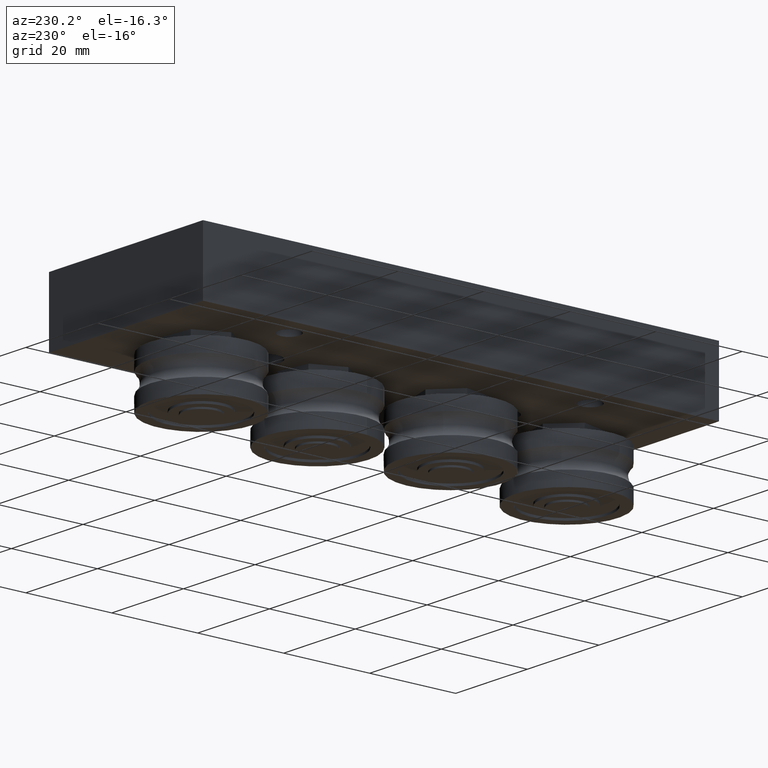
[diagram: clean part render]
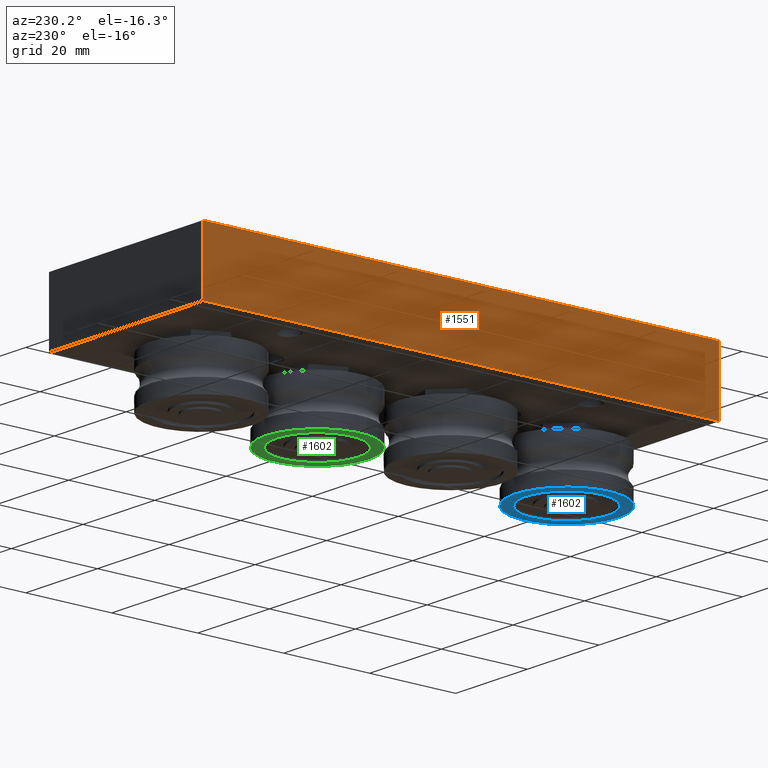
[diagram: same view with three faces highlighted in distinct colors, each labeled with its STEP entity id]
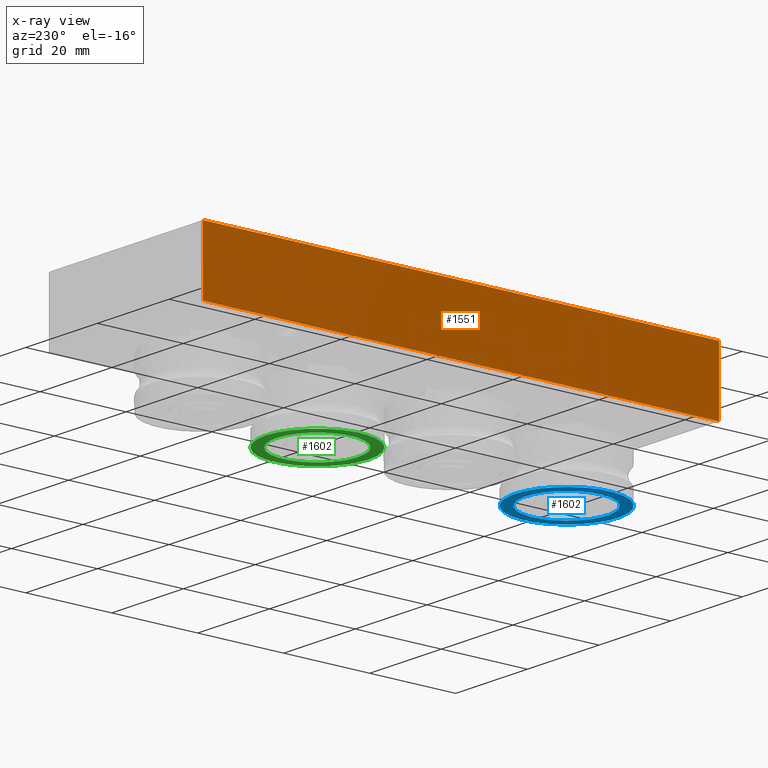
[diagram: x-ray of the same camera — body ghosted, the three highlighted faces saturated]
A machine part, auxiliary view with three faces highlighted in distinct colors.
The next image is the same camera in x-ray (body ghosted, the three faces saturated) — at least one of them is partly hidden behind the body in this view.
Their STEP definitions:

[orange] entity #1551 — the highlighted planar face has unit normal (-1, 0, 0).
#141=LINE('',#2687,#243);
#144=LINE('',#2693,#246);
#145=LINE('',#2695,#247);
#146=LINE('',#2696,#248);
#243=VECTOR('',#2171,10.);
#246=VECTOR('',#2176,10.);
#247=VECTOR('',#2177,10.);
#248=VECTOR('',#2178,10.);
#433=FACE_OUTER_BOUND('',#546,.T.);
#546=EDGE_LOOP('',(#1159,#1160,#1161,#1162));
#777=VERTEX_POINT('',#2684);
#778=VERTEX_POINT('',#2686);
#780=VERTEX_POINT('',#2692);
#781=VERTEX_POINT('',#2694);
#925=EDGE_CURVE('',#777,#778,#141,.T.);
#928=EDGE_CURVE('',#780,#777,#144,.T.);
#929=EDGE_CURVE('',#781,#780,#145,.T.);
#930=EDGE_CURVE('',#778,#781,#146,.T.);
#1159=ORIENTED_EDGE('',*,*,#928,.F.);
#1160=ORIENTED_EDGE('',*,*,#929,.F.);
#1161=ORIENTED_EDGE('',*,*,#930,.F.);
#1162=ORIENTED_EDGE('',*,*,#925,.F.);
#1484=PLANE('',#1891);
#1551=ADVANCED_FACE('',(#433),#1484,.T.);
#1891=AXIS2_PLACEMENT_3D('',#2691,#2174,#2175);
#2171=DIRECTION('',(-1.85037170770859E-16,0.,1.));
#2174=DIRECTION('center_axis',(1.,0.,1.85037170770859E-16));
#2175=DIRECTION('ref_axis',(1.85037170770859E-16,0.,-1.));
#2176=DIRECTION('',(0.,-1.,0.));
#2177=DIRECTION('',(1.85037170770859E-16,0.,-1.));
#2178=DIRECTION('',(0.,1.,0.));
#2684=CARTESIAN_POINT('',(21.5,-7.5,-60.));
#2686=CARTESIAN_POINT('',(21.5,-7.5,60.));
#2687=CARTESIAN_POINT('',(21.5,-7.5,60.));
#2691=CARTESIAN_POINT('Origin',(21.5,0.,60.));
#2692=CARTESIAN_POINT('',(21.5,7.5,-60.));
#2693=CARTESIAN_POINT('',(21.5,0.,-60.));
#2694=CARTESIAN_POINT('',(21.5,7.5,60.));
#2695=CARTESIAN_POINT('',(21.5,7.5,60.));
#2696=CARTESIAN_POINT('',(21.5,0.,60.));

[blue] entity #1602 — the highlighted planar face has unit normal (-0, -0, -1).
#406=FACE_BOUND('',#622,.T.);
#484=FACE_OUTER_BOUND('',#621,.T.);
#621=EDGE_LOOP('',(#1361));
#622=EDGE_LOOP('',(#1362));
#719=CIRCLE('',#1983,9.5);
#720=CIRCLE('',#1985,12.);
#842=VERTEX_POINT('',#2905);
#843=VERTEX_POINT('',#2909);
#1022=EDGE_CURVE('',#842,#842,#719,.T.);
#1023=EDGE_CURVE('',#843,#843,#720,.T.);
#1361=ORIENTED_EDGE('',*,*,#1023,.F.);
#1362=ORIENTED_EDGE('',*,*,#1022,.T.);
#1517=PLANE('',#1984);
#1602=ADVANCED_FACE('',(#484,#406),#1517,.T.);
#1983=AXIS2_PLACEMENT_3D('',#2907,#2419,#2420);
#1984=AXIS2_PLACEMENT_3D('',#2908,#2421,#2422);
#1985=AXIS2_PLACEMENT_3D('',#2910,#2423,#2424);
#2419=DIRECTION('center_axis',(1.,0.,0.));
#2420=DIRECTION('ref_axis',(0.,1.,0.));
#2421=DIRECTION('center_axis',(-1.,0.,0.));
#2422=DIRECTION('ref_axis',(0.,0.,1.));
#2423=DIRECTION('center_axis',(1.,0.,0.));
#2424=DIRECTION('ref_axis',(0.,1.,0.));
#2905=CARTESIAN_POINT('',(-5.5,-9.5,-1.16341445918999E-15));
#2907=CARTESIAN_POINT('Origin',(-5.5,0.,0.));
#2908=CARTESIAN_POINT('Origin',(-5.5,10.75,0.));
#2909=CARTESIAN_POINT('',(-5.5,-12.,-1.46957615897682E-15));
#2910=CARTESIAN_POINT('Origin',(-5.5,0.,0.));

[green] entity #1602 — the highlighted planar face has unit normal (-0, 0, -1).
#406=FACE_BOUND('',#622,.T.);
#484=FACE_OUTER_BOUND('',#621,.T.);
#621=EDGE_LOOP('',(#1361));
#622=EDGE_LOOP('',(#1362));
#719=CIRCLE('',#1983,9.5);
#720=CIRCLE('',#1985,12.);
#842=VERTEX_POINT('',#2905);
#843=VERTEX_POINT('',#2909);
#1022=EDGE_CURVE('',#842,#842,#719,.T.);
#1023=EDGE_CURVE('',#843,#843,#720,.T.);
#1361=ORIENTED_EDGE('',*,*,#1023,.F.);
#1362=ORIENTED_EDGE('',*,*,#1022,.T.);
#1517=PLANE('',#1984);
#1602=ADVANCED_FACE('',(#484,#406),#1517,.T.);
#1983=AXIS2_PLACEMENT_3D('',#2907,#2419,#2420);
#1984=AXIS2_PLACEMENT_3D('',#2908,#2421,#2422);
#1985=AXIS2_PLACEMENT_3D('',#2910,#2423,#2424);
#2419=DIRECTION('center_axis',(1.,0.,0.));
#2420=DIRECTION('ref_axis',(0.,1.,0.));
#2421=DIRECTION('center_axis',(-1.,0.,0.));
#2422=DIRECTION('ref_axis',(0.,0.,1.));
#2423=DIRECTION('center_axis',(1.,0.,0.));
#2424=DIRECTION('ref_axis',(0.,1.,0.));
#2905=CARTESIAN_POINT('',(-5.5,-9.5,-1.16341445918999E-15));
#2907=CARTESIAN_POINT('Origin',(-5.5,0.,0.));
#2908=CARTESIAN_POINT('Origin',(-5.5,10.75,0.));
#2909=CARTESIAN_POINT('',(-5.5,-12.,-1.46957615897682E-15));
#2910=CARTESIAN_POINT('Origin',(-5.5,0.,0.));